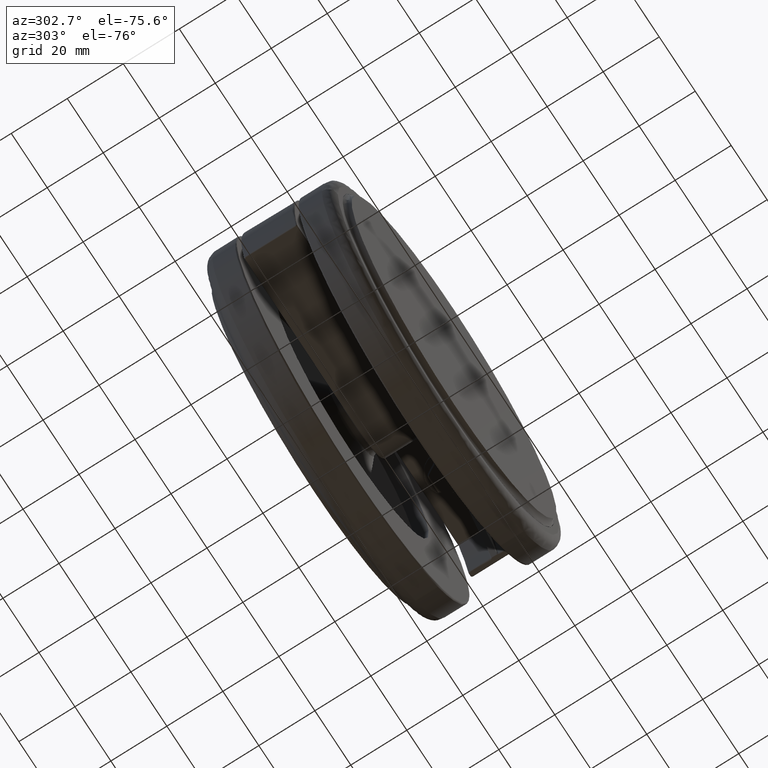
[diagram: clean part render]
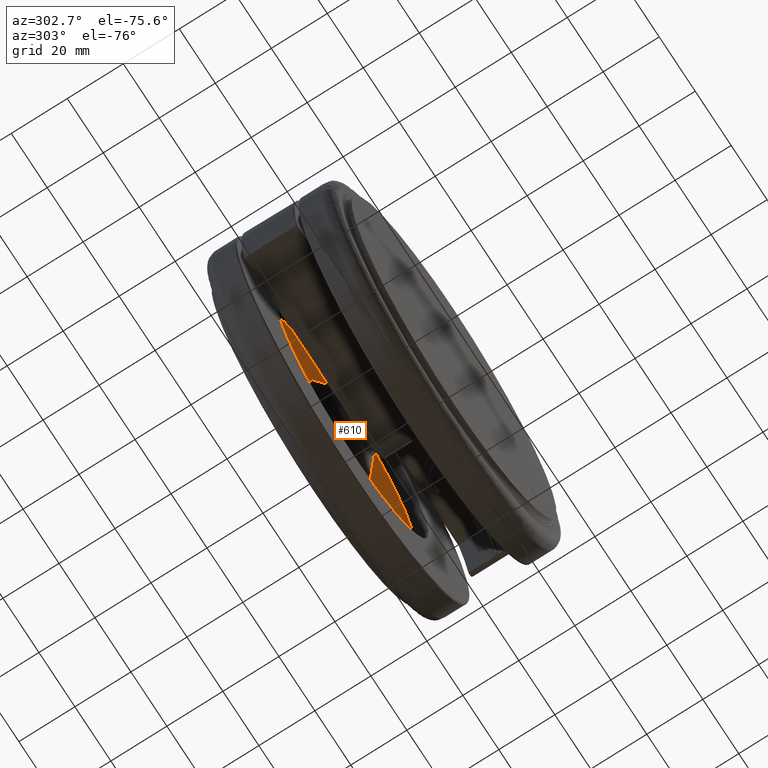
[diagram: same view with one face highlighted and labeled with its STEP entity id]
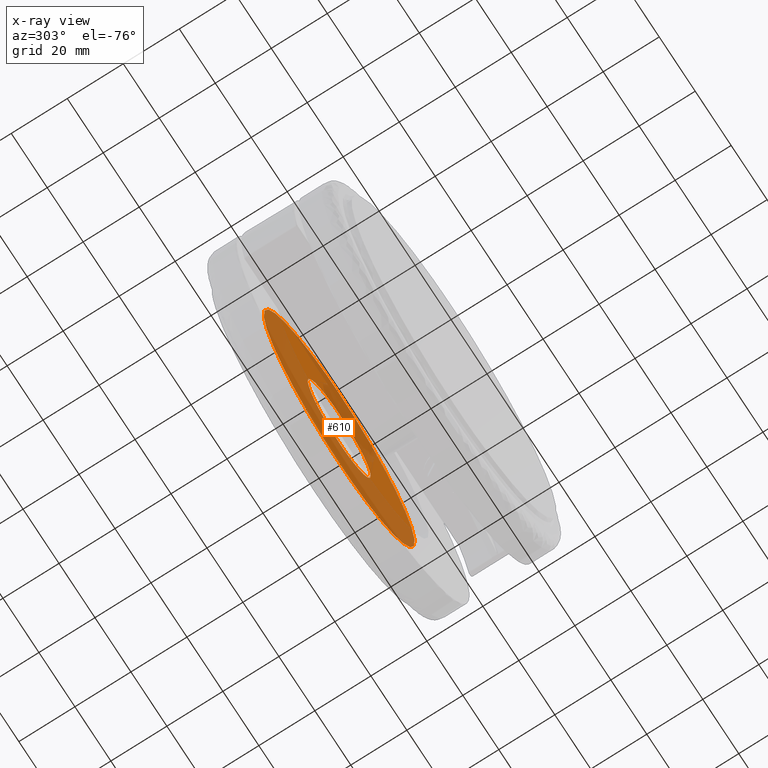
[diagram: x-ray of the same camera — body ghosted, the highlighted face saturated]
A machine part, auxiliary view. The second image highlights one B-rep face of the part: STEP entity #610.
The next image is the same camera in x-ray: the body ghosted, the highlighted face saturated — about 73% of this face is hidden behind the body in this view.
In plain terms, the highlighted face is a freeform B-spline surface patch.
Its self-contained STEP definition (entity closure, byte-faithful):
#430=CARTESIAN_POINT('',(-50.661351328023002,16.000000000002331,-79.308461729452290));
#431=VERTEX_POINT('',#430);
#437=CARTESIAN_POINT('',(-35.0,16.0,-89.0));
#438=VERTEX_POINT('',#437);
#439=CARTESIAN_POINT('',(-35.0,16.0,-89.0));
#440=CARTESIAN_POINT('',(-45.829328592557459,16.000000000001162,-89.000000000000554));
#441=CARTESIAN_POINT('',(-50.661351328023002,16.000000000002331,-79.308461729452290));
#449=(BOUNDED_CURVE()B_SPLINE_CURVE(2,(#439,#440,#441),.UNSPECIFIED.,.F.,.U.)B_SPLINE_CURVE_WITH_KNOTS((3,3),(0.500000000000000,0.674147455740079),.UNSPECIFIED.)CURVE()GEOMETRIC_REPRESENTATION_ITEM()RATIONAL_B_SPLINE_CURVE((1.0,0.795973564560460,0.876192606205027))REPRESENTATION_ITEM(''));
#450=EDGE_CURVE('',#438,#431,#449,.T.);
#452=CARTESIAN_POINT('',(-19.338648671976969,16.000000000002309,-63.691538270547731));
#453=VERTEX_POINT('',#452);
#454=CARTESIAN_POINT('',(-19.338648671976969,16.000000000002313,-63.691538270547724));
#455=CARTESIAN_POINT('',(-17.499999999997879,16.000000000002139,-67.379296989023345));
#456=CARTESIAN_POINT('',(-17.499999999998149,16.000000000001869,-71.499999999999076));
#457=CARTESIAN_POINT('',(-17.499999999999289,16.000000000000718,-88.999999999999659));
#458=CARTESIAN_POINT('',(-35.0,16.0,-89.0));
#466=(BOUNDED_CURVE()B_SPLINE_CURVE(2,(#454,#455,#456,#457,#458),.UNSPECIFIED.,.F.,.U.)B_SPLINE_CURVE_WITH_KNOTS((3,2,3),(0.174147455740079,0.250000000000000,0.500000000000000),.UNSPECIFIED.)CURVE()GEOMETRIC_REPRESENTATION_ITEM()RATIONAL_B_SPLINE_CURVE((0.876192606205027,0.911133216626088,1.0,0.707106781186548,1.0))REPRESENTATION_ITEM(''));
#467=EDGE_CURVE('',#453,#438,#466,.T.);
#497=CARTESIAN_POINT('',(-35.0,16.0,-53.999999999999993));
#498=VERTEX_POINT('',#497);
#499=CARTESIAN_POINT('',(-35.0,16.0,-53.999999999999993));
#500=CARTESIAN_POINT('',(-24.170671407442505,16.000000000001155,-53.999999999999410));
#501=CARTESIAN_POINT('',(-19.338648671976969,16.000000000002313,-63.691538270547724));
#509=(BOUNDED_CURVE()B_SPLINE_CURVE(2,(#499,#500,#501),.UNSPECIFIED.,.F.,.U.)B_SPLINE_CURVE_WITH_KNOTS((3,3),(0.0,0.174147455740079),.UNSPECIFIED.)CURVE()GEOMETRIC_REPRESENTATION_ITEM()RATIONAL_B_SPLINE_CURVE((1.0,0.795973564560460,0.876192606205027))REPRESENTATION_ITEM(''));
#510=EDGE_CURVE('',#498,#453,#509,.T.);
#512=CARTESIAN_POINT('',(-50.661351328023002,16.000000000002331,-79.308461729452290));
#513=CARTESIAN_POINT('',(-52.500000000002110,16.000000000002156,-75.620703010976655));
#514=CARTESIAN_POINT('',(-52.500000000001833,16.000000000001890,-71.500000000000909));
#515=CARTESIAN_POINT('',(-52.500000000000711,16.000000000000718,-54.000000000000341));
#516=CARTESIAN_POINT('',(-35.0,16.0,-53.999999999999993));
#524=(BOUNDED_CURVE()B_SPLINE_CURVE(2,(#512,#513,#514,#515,#516),.UNSPECIFIED.,.F.,.U.)B_SPLINE_CURVE_WITH_KNOTS((3,2,3),(0.674147455740079,0.750000000000000,1.0),.UNSPECIFIED.)CURVE()GEOMETRIC_REPRESENTATION_ITEM()RATIONAL_B_SPLINE_CURVE((0.876192606205027,0.911133216626087,1.0,0.707106781186548,1.0))REPRESENTATION_ITEM(''));
#525=EDGE_CURVE('',#431,#498,#524,.T.);
#533=CARTESIAN_POINT('',(11.182978825995869,16.0,-117.695799837191700));
#534=CARTESIAN_POINT('',(11.182978825995869,16.0,-25.304197909752720));
#535=CARTESIAN_POINT('',(-81.182981830069977,16.0,-117.695799837191700));
#536=CARTESIAN_POINT('',(-81.182981830069977,16.0,-25.304197909752720));
#537=B_SPLINE_SURFACE_WITH_KNOTS('',1,1,((#533,#535),(#534,#536)),.UNSPECIFIED.,.F.,.F.,.U.,(2,2),(2,2),(0.0,92.391601927438970),(0.0,92.365960656065837),.UNSPECIFIED.);
#538=CARTESIAN_POINT('',(-76.870530886229631,16.0,-74.795245560493697));
#539=VERTEX_POINT('',#538);
#540=CARTESIAN_POINT('',(-35.0,16.0,-29.499999999999989));
#541=VERTEX_POINT('',#540);
#542=CARTESIAN_POINT('',(-76.870530886229631,15.999999999999996,-74.795245560493697));
#543=CARTESIAN_POINT('',(-76.999999999984411,16.0,-73.150166179684717));
#544=CARTESIAN_POINT('',(-76.999999999984709,16.0,-71.499999999998792));
#545=CARTESIAN_POINT('',(-76.999999999992667,16.0,-29.499999999999421));
#546=CARTESIAN_POINT('',(-35.0,16.0,-29.499999999999989));
#554=(BOUNDED_CURVE()B_SPLINE_CURVE(2,(#542,#543,#544,#545,#546),.UNSPECIFIED.,.F.,.U.)B_SPLINE_CURVE_WITH_KNOTS((3,2,3),(0.736331449906033,0.750000000000000,1.0),.UNSPECIFIED.)CURVE()GEOMETRIC_REPRESENTATION_ITEM()RATIONAL_B_SPLINE_CURVE((0.969723667693943,0.983986297465861,1.0,0.707106781186547,1.0))REPRESENTATION_ITEM(''));
#555=EDGE_CURVE('',#539,#541,#554,.T.);
#556=ORIENTED_EDGE('',*,*,#555,.F.);
#557=CARTESIAN_POINT('',(-35.0,16.0,-113.500000000000000));
#558=VERTEX_POINT('',#557);
#559=CARTESIAN_POINT('',(-35.0,16.0,-113.500000000000000));
#560=CARTESIAN_POINT('',(-73.824434561752611,16.0,-113.499999999999330));
#561=CARTESIAN_POINT('',(-76.870530886229631,15.999999999999996,-74.795245560493697));
#569=(BOUNDED_CURVE()B_SPLINE_CURVE(2,(#559,#560,#561),.UNSPECIFIED.,.F.,.U.)B_SPLINE_CURVE_WITH_KNOTS((3,3),(0.500000000000000,0.736331449906033),.UNSPECIFIED.)CURVE()GEOMETRIC_REPRESENTATION_ITEM()RATIONAL_B_SPLINE_CURVE((1.0,0.723120483720687,0.969723667693943))REPRESENTATION_ITEM(''));
#570=EDGE_CURVE('',#558,#539,#569,.T.);
#571=ORIENTED_EDGE('',*,*,#570,.F.);
#572=CARTESIAN_POINT('',(6.870530886229620,16.0,-68.204754439506317));
#573=VERTEX_POINT('',#572);
#574=CARTESIAN_POINT('',(6.870530886229620,16.000000000000004,-68.204754439506317));
#575=CARTESIAN_POINT('',(6.999999999984409,15.999999999999998,-69.849833820315297));
#576=CARTESIAN_POINT('',(6.999999999984722,16.0,-71.500000000001208));
#577=CARTESIAN_POINT('',(6.999999999992660,16.0,-113.500000000000540));
#578=CARTESIAN_POINT('',(-35.0,16.0,-113.500000000000000));
#586=(BOUNDED_CURVE()B_SPLINE_CURVE(2,(#574,#575,#576,#577,#578),.UNSPECIFIED.,.F.,.U.)B_SPLINE_CURVE_WITH_KNOTS((3,2,3),(0.236331449906033,0.250000000000000,0.500000000000000),.UNSPECIFIED.)CURVE()GEOMETRIC_REPRESENTATION_ITEM()RATIONAL_B_SPLINE_CURVE((0.969723667693944,0.983986297465861,1.0,0.707106781186547,1.0))REPRESENTATION_ITEM(''));
#587=EDGE_CURVE('',#573,#558,#586,.T.);
#588=ORIENTED_EDGE('',*,*,#587,.F.);
#589=CARTESIAN_POINT('',(-35.0,16.0,-29.499999999999989));
#590=CARTESIAN_POINT('',(3.824434561752628,16.000000000000004,-29.500000000000611));
#591=CARTESIAN_POINT('',(6.870530886229620,16.000000000000004,-68.204754439506317));
#599=(BOUNDED_CURVE()B_SPLINE_CURVE(2,(#589,#590,#591),.UNSPECIFIED.,.F.,.U.)B_SPLINE_CURVE_WITH_KNOTS((3,3),(0.0,0.236331449906033),.UNSPECIFIED.)CURVE()GEOMETRIC_REPRESENTATION_ITEM()RATIONAL_B_SPLINE_CURVE((1.0,0.723120483720687,0.969723667693944))REPRESENTATION_ITEM(''));
#600=EDGE_CURVE('',#541,#573,#599,.T.);
#601=ORIENTED_EDGE('',*,*,#600,.F.);
#602=EDGE_LOOP('',(#556,#571,#588,#601));
#603=FACE_OUTER_BOUND('',#602,.T.);
#604=ORIENTED_EDGE('',*,*,#450,.T.);
#605=ORIENTED_EDGE('',*,*,#525,.T.);
#606=ORIENTED_EDGE('',*,*,#510,.T.);
#607=ORIENTED_EDGE('',*,*,#467,.T.);
#608=EDGE_LOOP('',(#604,#605,#606,#607));
#609=FACE_BOUND('',#608,.T.);
#610=ADVANCED_FACE('',(#603,#609),#537,.T.);